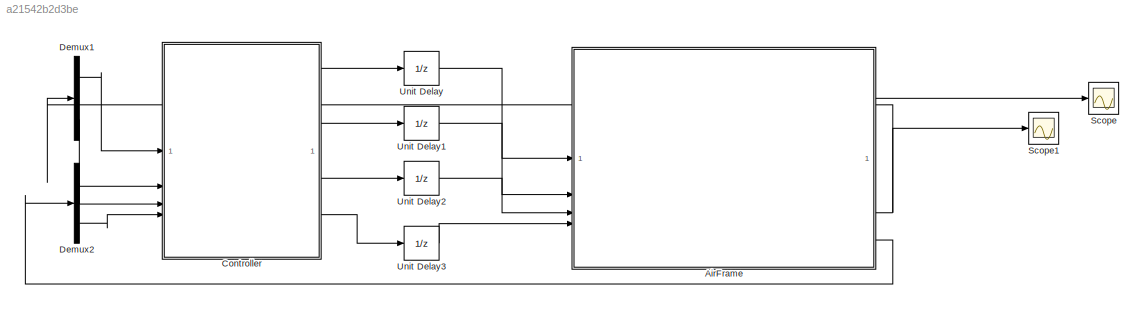
MODEL slx_a21542b2d3be
KIND model
CONFIG AbsTol = auto
CONFIG EnableMultiTasking = off
CONFIG FixedStep = auto
CONFIG MaxStep = auto
CONFIG MinStep = auto
CONFIG RelTol = 1e-3
CONFIG SampleTimeConstraint = Unconstrained
CONFIG SolverName = VariableStepAuto
CONFIG StartTime = 0.0
CONFIG StopTime = 10.0
BLOCK [ModelReference] AirFrame
  ModelNameDialog = AirFrame.slx
  ModelReferenceVersion = 1.9
BLOCK [ModelReference] Controller
  ModelNameDialog = Controller.slx
  ModelReferenceVersion = 1.14
BLOCK [Demux] Demux1
  Outputs = 3
BLOCK [Demux] Demux2
  Outputs = 3
BLOCK [Scope] Scope
  ActiveDisplayYMaximum = 45.154569618914209
  ActiveDisplayYMinimum = -5.0171744021015954
  Floating = off
  GraphicalSettings = {"Style":{"BackgroundColor":[0.12941176470588237,0.12941176470588237,0.12941176470588237],"AxesColor":[0.07058823529411765,0.07058823529411765,0.07058823529411765],"LabelsColor":[0.8509803921568627,0.8509803921568627,0.8509803921568627],"PreserveColors":false,"Visible":[true,true,true],"LineStyle":["-","-","-"],"LineWidth":[1.5,1.5,1.5],"BarWidth":[0.9,0.9,0.9],"LineColor":["auto","auto","auto"],"...<+2254ch>
  MultipleDisplayCache = [{"MaxYLimMag":45.154569618914209,"MaxYLimReal":45.154569618914209,"MinYLimMag":0,"MinYLimReal":-5.0171744021015954,"PlotAsMagnitudePhase":false,"ShowGrid":true,"ShowLegend":true,"Title":"%<SignalLabel>","YLabel":""}]
  NumInputPorts = 1
  ScopeFrameLocation = window
  ShowLegend = on
  Visible = on
  WasSavedAsWebScope = on
  WindowPosition = [836.000000,323.000000,560.000000,420.000000,]
BLOCK [Scope] Scope1
  ActiveDisplayYMaximum = 0.13279712820846967
  ActiveDisplayYMinimum = -0.019966386577786221
  DataLoggingVariableName = ScopeData1
  Floating = off
  GraphicalSettings = {"Style":{"BackgroundColor":[0.12941176470588237,0.12941176470588237,0.12941176470588237],"AxesColor":[0.07058823529411765,0.07058823529411765,0.07058823529411765],"LabelsColor":[0.8509803921568627,0.8509803921568627,0.8509803921568627],"PreserveColors":false,"Visible":[true,true,true],"LineStyle":["-","-","-"],"LineWidth":[1.5,1.5,1.5],"BarWidth":[0.9,0.9,0.9],"LineColor":["auto","auto","auto"],"...<+2262ch>
  MultipleDisplayCache = [{"MaxYLimMag":0.13279712820846967,"MaxYLimReal":0.13279712820846967,"MinYLimMag":0,"MinYLimReal":-0.019966386577786221,"PlotAsMagnitudePhase":false,"ShowGrid":true,"ShowLegend":true,"Title":"%<SignalLabel>","YLabel":""}]
  NumInputPorts = 1
  ScopeFrameLocation = window
  ShowLegend = on
  Visible = on
  WasSavedAsWebScope = on
  WindowPosition = [375.000000,362.000000,560.000000,420.000000,]
BLOCK [UnitDelay] Unit Delay
  HasFrameUpgradeWarning = on
  SampleTime = -1
BLOCK [UnitDelay] Unit Delay1
  HasFrameUpgradeWarning = on
  SampleTime = -1
BLOCK [UnitDelay] Unit Delay2
  HasFrameUpgradeWarning = on
  SampleTime = -1
BLOCK [UnitDelay] Unit Delay3
  HasFrameUpgradeWarning = on
  SampleTime = -1
LINE AirFrame:2 -> Scope:1
NET AirFrame:3 -> Demux1:1, Scope1:1
LINE AirFrame:7 -> Demux2:1
LINE Controller:1 -> Unit Delay:1
LINE Controller:2 -> Unit Delay1:1
LINE Controller:3 -> Unit Delay2:1
LINE Controller:4 -> Unit Delay3:1
LINE Demux1:1 -> Controller:1
LINE Demux1:3 -> Controller:2
LINE Demux2:1 -> Controller:3
LINE Demux2:3 -> Controller:4
LINE Unit Delay1:1 -> AirFrame:2
LINE Unit Delay2:1 -> AirFrame:3
LINE Unit Delay3:1 -> AirFrame:4
LINE Unit Delay:1 -> AirFrame:1
note: NET lines group one-source signal fan-out (src -> all destinations, sorted); 1:1 wires keep LINE
